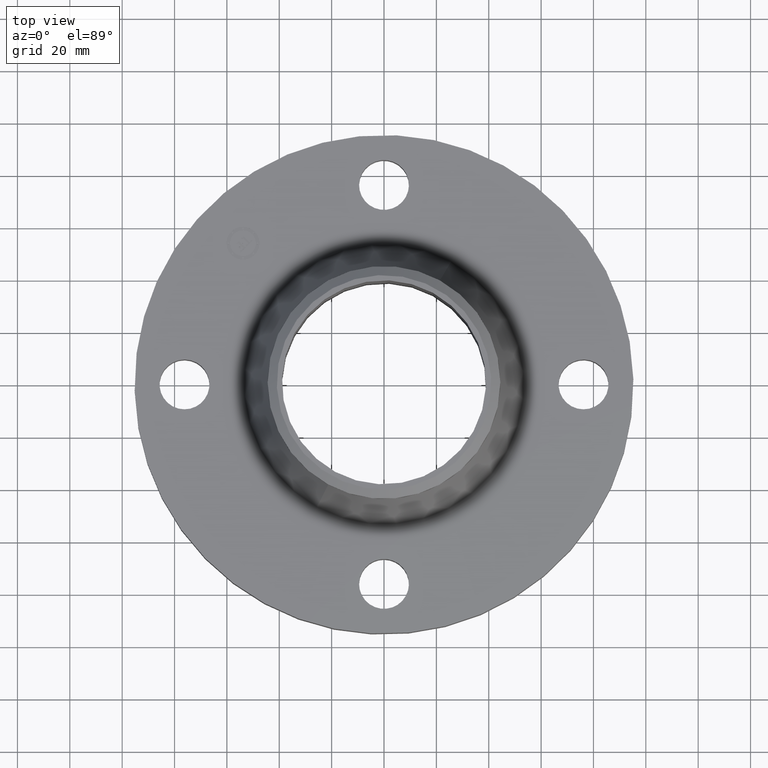
[diagram: clean part render]
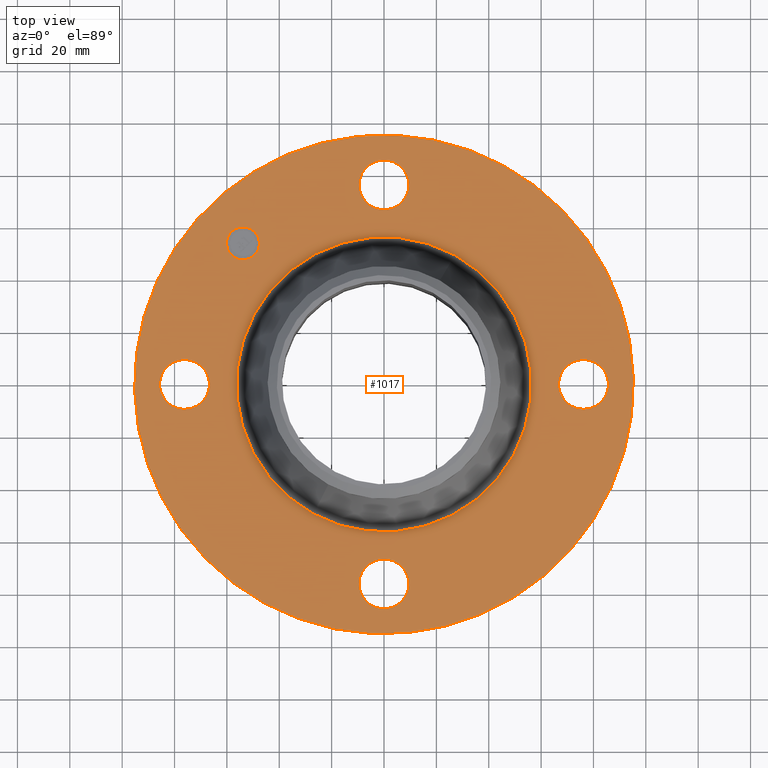
[diagram: same view with one face highlighted and labeled with its STEP entity id]
A machine part, top view. The second image highlights one B-rep face of the part: STEP entity #1017.
In plain terms, the highlighted planar face has unit normal (0, 0, -1).
Its self-contained STEP definition (entity closure, byte-faithful):
#65=AXIS2_PLACEMENT_3D('Circle Axis2P3D',#63,#64,$) ;
#89=AXIS2_PLACEMENT_3D('Circle Axis2P3D',#87,#88,$) ;
#123=AXIS2_PLACEMENT_3D('Circle Axis2P3D',#121,#122,$) ;
#147=AXIS2_PLACEMENT_3D('Circle Axis2P3D',#145,#146,$) ;
#164=AXIS2_PLACEMENT_3D('Circle Axis2P3D',#162,#163,$) ;
#199=AXIS2_PLACEMENT_3D('Circle Axis2P3D',#197,#198,$) ;
#627=AXIS2_PLACEMENT_3D('Circle Axis2P3D',#625,#626,$) ;
#639=AXIS2_PLACEMENT_3D('Circle Axis2P3D',#637,#638,$) ;
#671=AXIS2_PLACEMENT_3D('Circle Axis2P3D',#669,#670,$) ;
#683=AXIS2_PLACEMENT_3D('Circle Axis2P3D',#681,#682,$) ;
#715=AXIS2_PLACEMENT_3D('Circle Axis2P3D',#713,#714,$) ;
#727=AXIS2_PLACEMENT_3D('Circle Axis2P3D',#725,#726,$) ;
#973=AXIS2_PLACEMENT_3D('Plane Axis2P3D',#970,#971,#972) ;
#1001=AXIS2_PLACEMENT_3D('Circle Axis2P3D',#999,#1000,$) ;
#1010=AXIS2_PLACEMENT_3D('Circle Axis2P3D',#1008,#1009,$) ;
#46=CARTESIAN_POINT('Vertex',(-0.32909346071,3.17978457699,0.880000000004)) ;
#60=CARTESIAN_POINT('Vertex',(0.32909346071,2.82021542303,0.880000000004)) ;
#63=CARTESIAN_POINT('Axis2P3D Location',(0.,3.00000000001,0.880000000004)) ;
#87=CARTESIAN_POINT('Axis2P3D Location',(0.,3.00000000001,0.880000000004)) ;
#118=CARTESIAN_POINT('Vertex',(-1.79784576977,-3.2909346071,0.880000000004)) ;
#121=CARTESIAN_POINT('Axis2P3D Location',(0.,0.,0.880000000004)) ;
#125=CARTESIAN_POINT('Vertex',(1.79784576977,3.2909346071,0.880000000004)) ;
#145=CARTESIAN_POINT('Axis2P3D Location',(0.,0.,0.880000000004)) ;
#162=CARTESIAN_POINT('Axis2P3D Location',(0.,0.,0.880000000004)) ;
#166=CARTESIAN_POINT('Vertex',(1.06346490253,1.94665944655,0.880000000004)) ;
#168=CARTESIAN_POINT('Vertex',(-1.06346490253,-1.94665944655,0.880000000004)) ;
#197=CARTESIAN_POINT('Axis2P3D Location',(0.,0.,0.880000000004)) ;
#615=CARTESIAN_POINT('Vertex',(3.17978457699,0.32909346071,0.880000000004)) ;
#622=CARTESIAN_POINT('Vertex',(2.82021542303,-0.32909346071,0.880000000004)) ;
#625=CARTESIAN_POINT('Axis2P3D Location',(3.00000000001,1.83697019873E-016,0.880000000004)) ;
#637=CARTESIAN_POINT('Axis2P3D Location',(3.00000000001,1.83697019873E-016,0.880000000004)) ;
#659=CARTESIAN_POINT('Vertex',(-3.17978457699,-0.32909346071,0.880000000004)) ;
#666=CARTESIAN_POINT('Vertex',(-2.82021542303,0.32909346071,0.880000000004)) ;
#669=CARTESIAN_POINT('Axis2P3D Location',(-3.00000000001,-5.51091059619E-016,0.880000000004)) ;
#681=CARTESIAN_POINT('Axis2P3D Location',(-3.00000000001,-5.51091059619E-016,0.880000000004)) ;
#703=CARTESIAN_POINT('Vertex',(0.32909346071,-3.17978457699,0.880000000004)) ;
#710=CARTESIAN_POINT('Vertex',(-0.32909346071,-2.82021542303,0.880000000004)) ;
#713=CARTESIAN_POINT('Axis2P3D Location',(3.67394039746E-016,-3.00000000001,0.880000000004)) ;
#725=CARTESIAN_POINT('Axis2P3D Location',(3.67394039746E-016,-3.00000000001,0.880000000004)) ;
#970=CARTESIAN_POINT('Axis2P3D Location',(0.,3.75000000002,0.880000000004)) ;
#999=CARTESIAN_POINT('Axis2P3D Location',(-2.12132034357,2.12132034357,0.880000000004)) ;
#1003=CARTESIAN_POINT('Vertex',(-1.94631141522,2.29632927191,0.880000000004)) ;
#1005=CARTESIAN_POINT('Vertex',(-2.29632927191,1.94631141522,0.880000000004)) ;
#1008=CARTESIAN_POINT('Axis2P3D Location',(-2.12132034357,2.12132034357,0.880000000004)) ;
#64=DIRECTION('Axis2P3D Direction',(0.,-0.,-0.0393700787402)) ;
#88=DIRECTION('Axis2P3D Direction',(0.,-0.,-0.0393700787402)) ;
#122=DIRECTION('Axis2P3D Direction',(0.,0.,-0.0393700787402)) ;
#146=DIRECTION('Axis2P3D Direction',(0.,0.,-0.0393700787402)) ;
#163=DIRECTION('Axis2P3D Direction',(0.,0.,-0.0393700787402)) ;
#198=DIRECTION('Axis2P3D Direction',(0.,0.,-0.0393700787402)) ;
#626=DIRECTION('Axis2P3D Direction',(0.,-0.,-0.0393700787402)) ;
#638=DIRECTION('Axis2P3D Direction',(0.,-0.,-0.0393700787402)) ;
#670=DIRECTION('Axis2P3D Direction',(0.,0.,-0.0393700787402)) ;
#682=DIRECTION('Axis2P3D Direction',(0.,0.,-0.0393700787402)) ;
#714=DIRECTION('Axis2P3D Direction',(-0.,0.,-0.0393700787402)) ;
#726=DIRECTION('Axis2P3D Direction',(-0.,0.,-0.0393700787402)) ;
#971=DIRECTION('Axis2P3D Direction',(0.,0.,-0.0393700787402)) ;
#972=DIRECTION('Axis2P3D XDirection',(0.0393700787402,0.,0.)) ;
#1000=DIRECTION('Axis2P3D Direction',(0.,0.,-0.0393700787402)) ;
#1009=DIRECTION('Axis2P3D Direction',(0.,0.,-0.0393700787402)) ;
#976=ORIENTED_EDGE('',*,*,#149,.F.) ;
#977=ORIENTED_EDGE('',*,*,#127,.F.) ;
#980=ORIENTED_EDGE('',*,*,#67,.T.) ;
#981=ORIENTED_EDGE('',*,*,#91,.T.) ;
#984=ORIENTED_EDGE('',*,*,#201,.T.) ;
#985=ORIENTED_EDGE('',*,*,#170,.T.) ;
#988=ORIENTED_EDGE('',*,*,#641,.T.) ;
#989=ORIENTED_EDGE('',*,*,#629,.T.) ;
#992=ORIENTED_EDGE('',*,*,#729,.T.) ;
#993=ORIENTED_EDGE('',*,*,#717,.T.) ;
#996=ORIENTED_EDGE('',*,*,#685,.T.) ;
#997=ORIENTED_EDGE('',*,*,#673,.T.) ;
#1014=ORIENTED_EDGE('',*,*,#1007,.F.) ;
#1015=ORIENTED_EDGE('',*,*,#1012,.F.) ;
#982=FACE_BOUND('',#979,.T.) ;
#986=FACE_BOUND('',#983,.T.) ;
#990=FACE_BOUND('',#987,.T.) ;
#994=FACE_BOUND('',#991,.T.) ;
#998=FACE_BOUND('',#995,.T.) ;
#1016=FACE_BOUND('',#1013,.T.) ;
#1017=ADVANCED_FACE('PartBody',(#978,#982,#986,#990,#994,#998,#1016),#974,.F.) ;
#66=CIRCLE('generated circle',#65,0.375000000001) ;
#90=CIRCLE('generated circle',#89,0.375000000001) ;
#124=CIRCLE('generated circle',#123,3.75000000002) ;
#148=CIRCLE('generated circle',#147,3.75000000002) ;
#165=CIRCLE('generated circle',#164,2.21820661792) ;
#200=CIRCLE('generated circle',#199,2.21820661792) ;
#628=CIRCLE('generated circle',#627,0.375000000001) ;
#640=CIRCLE('generated circle',#639,0.375000000001) ;
#672=CIRCLE('generated circle',#671,0.375000000001) ;
#684=CIRCLE('generated circle',#683,0.375000000001) ;
#716=CIRCLE('generated circle',#715,0.375000000001) ;
#728=CIRCLE('generated circle',#727,0.375000000001) ;
#1002=CIRCLE('generated circle',#1001,0.247500000001) ;
#1011=CIRCLE('generated circle',#1010,0.247500000001) ;
#67=EDGE_CURVE('',#47,#61,#66,.T.) ;
#91=EDGE_CURVE('',#61,#47,#90,.T.) ;
#127=EDGE_CURVE('',#119,#126,#124,.T.) ;
#149=EDGE_CURVE('',#126,#119,#148,.T.) ;
#170=EDGE_CURVE('',#167,#169,#165,.T.) ;
#201=EDGE_CURVE('',#169,#167,#200,.T.) ;
#629=EDGE_CURVE('',#616,#623,#628,.T.) ;
#641=EDGE_CURVE('',#623,#616,#640,.T.) ;
#673=EDGE_CURVE('',#660,#667,#672,.T.) ;
#685=EDGE_CURVE('',#667,#660,#684,.T.) ;
#717=EDGE_CURVE('',#704,#711,#716,.T.) ;
#729=EDGE_CURVE('',#711,#704,#728,.T.) ;
#1007=EDGE_CURVE('',#1004,#1006,#1002,.F.) ;
#1012=EDGE_CURVE('',#1006,#1004,#1011,.F.) ;
#975=EDGE_LOOP('',(#976,#977)) ;
#979=EDGE_LOOP('',(#980,#981)) ;
#983=EDGE_LOOP('',(#984,#985)) ;
#987=EDGE_LOOP('',(#988,#989)) ;
#991=EDGE_LOOP('',(#992,#993)) ;
#995=EDGE_LOOP('',(#996,#997)) ;
#1013=EDGE_LOOP('',(#1014,#1015)) ;
#978=FACE_OUTER_BOUND('',#975,.T.) ;
#974=PLANE('',#973) ;
#47=VERTEX_POINT('',#46) ;
#61=VERTEX_POINT('',#60) ;
#119=VERTEX_POINT('',#118) ;
#126=VERTEX_POINT('',#125) ;
#167=VERTEX_POINT('',#166) ;
#169=VERTEX_POINT('',#168) ;
#616=VERTEX_POINT('',#615) ;
#623=VERTEX_POINT('',#622) ;
#660=VERTEX_POINT('',#659) ;
#667=VERTEX_POINT('',#666) ;
#704=VERTEX_POINT('',#703) ;
#711=VERTEX_POINT('',#710) ;
#1004=VERTEX_POINT('',#1003) ;
#1006=VERTEX_POINT('',#1005) ;